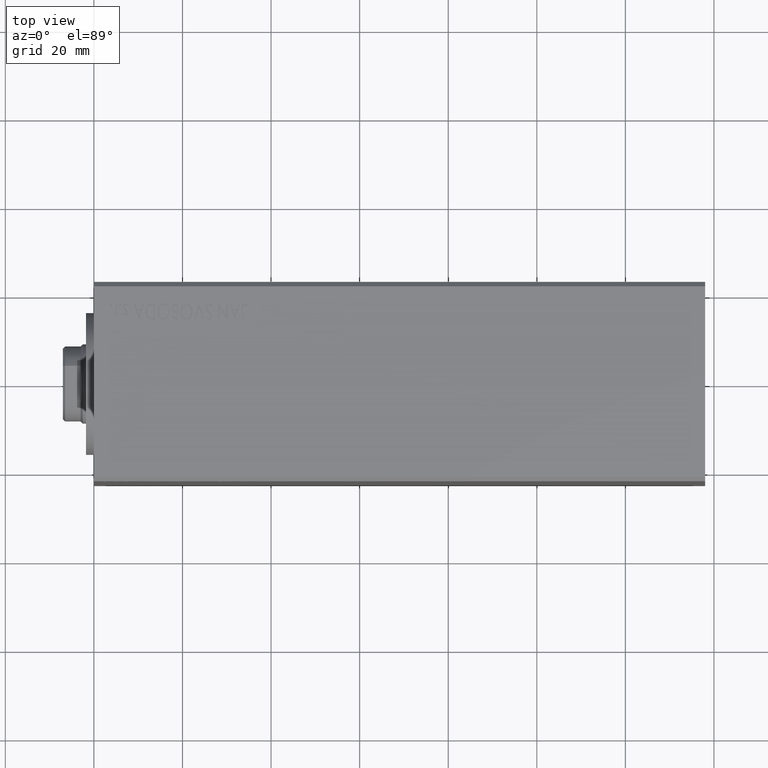
[diagram: clean part render]
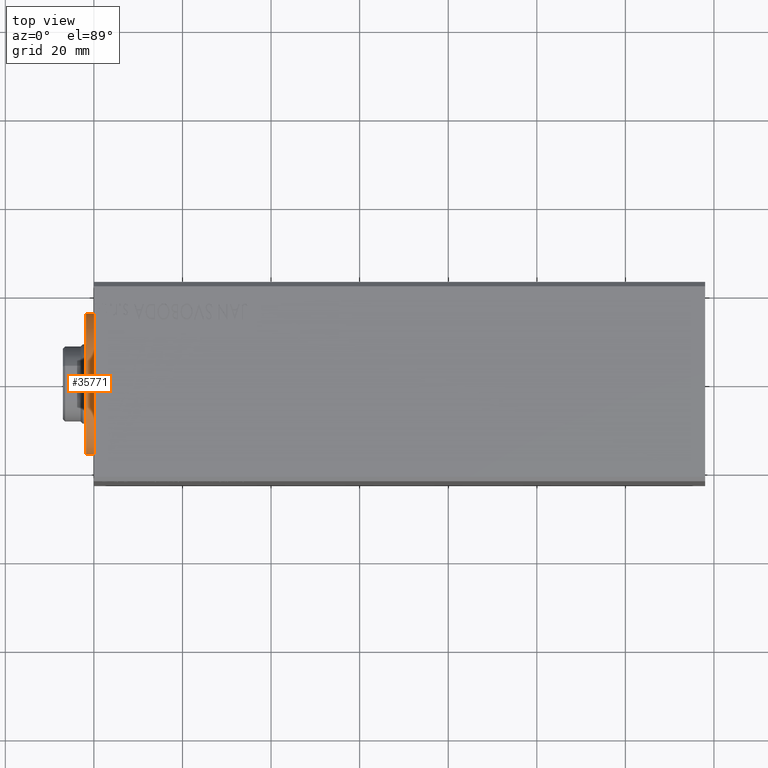
[diagram: same view with one face highlighted and labeled with its STEP entity id]
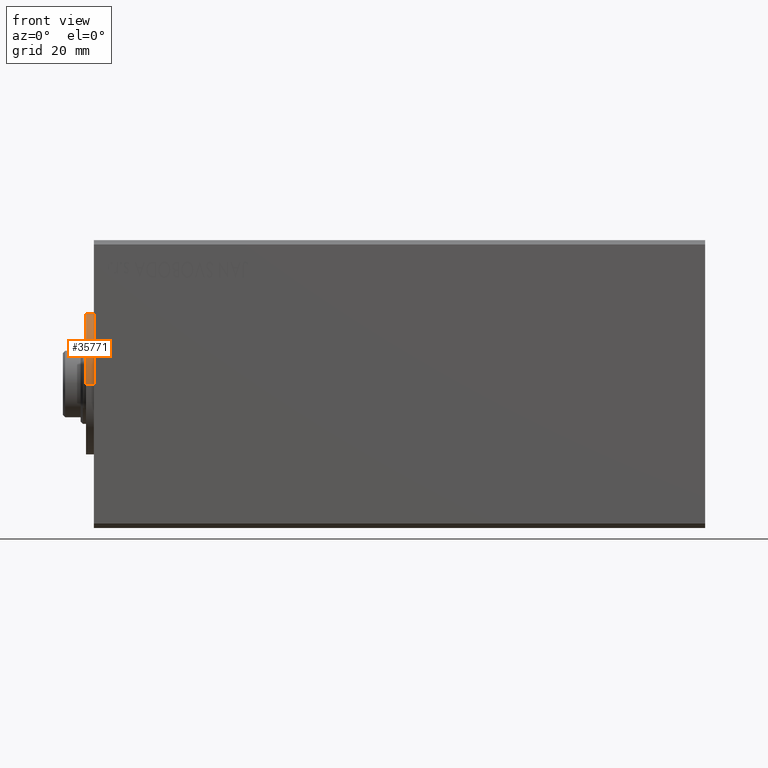
[diagram: same view with one face highlighted and labeled with its STEP entity id]
A machine part, top view. The second image highlights one B-rep face of the part: STEP entity #35771.
A second angle (front view) of the same face is appended — the face is thin or edge-on in the first view.
In plain terms, the highlighted cylindrical surface (partial cylindrical patch) has radius 16 mm, axis along (1, -0, 0).
Its self-contained STEP definition (entity closure, byte-faithful):
#288 = CARTESIAN_POINT ( 'NONE',  ( -16.00000000000000000, 0.000000000000000000, 6.999999999999999112 ) ) ;
#439 = EDGE_CURVE ( 'NONE', #32513, #9167, #26528, .T. ) ;
#4859 = CARTESIAN_POINT ( 'NONE',  ( 0.000000000000000000, 0.000000000000000000, 5.200000000000000178 ) ) ;
#5517 = DIRECTION ( 'NONE',  ( -1.000000000000000000, 0.000000000000000000, 0.000000000000000000 ) ) ;
#6761 = LINE ( 'NONE', #288, #21426 ) ;
#7594 = AXIS2_PLACEMENT_3D ( 'NONE', #27181, #34084, #40768 ) ;
#9167 = VERTEX_POINT ( 'NONE', #20217 ) ;
#10325 = DIRECTION ( 'NONE',  ( -0.000000000000000000, -0.000000000000000000, -1.000000000000000000 ) ) ;
#15343 = DIRECTION ( 'NONE',  ( 0.000000000000000000, 0.000000000000000000, 1.000000000000000000 ) ) ;
#17571 = CIRCLE ( 'NONE', #7594, 16.00000000000000000 ) ;
#19841 = EDGE_CURVE ( 'NONE', #40387, #9167, #34207, .T. ) ;
#20217 = CARTESIAN_POINT ( 'NONE',  ( 16.00000000000000000, 1.959434878635765131E-15, 5.200000000000000178 ) ) ;
#20864 = VERTEX_POINT ( 'NONE', #26276 ) ;
#21335 = ORIENTED_EDGE ( 'NONE', *, *, #19841, .T. ) ;
#21426 = VECTOR ( 'NONE', #10325, 1000.000000000000000 ) ;
#22919 = CYLINDRICAL_SURFACE ( 'NONE', #43328, 16.00000000000000000 ) ;
#24935 = AXIS2_PLACEMENT_3D ( 'NONE', #4859, #15343, #33331 ) ;
#25139 = EDGE_LOOP ( 'NONE', ( #32844, #34384, #27349, #21335 ) ) ;
#26276 = CARTESIAN_POINT ( 'NONE',  ( -16.00000000000000000, 0.000000000000000000, 6.999999999999999112 ) ) ;
#26528 = LINE ( 'NONE', #36350, #28364 ) ;
#27181 = CARTESIAN_POINT ( 'NONE',  ( 0.000000000000000000, 0.000000000000000000, 6.999999999999999112 ) ) ;
#27349 = ORIENTED_EDGE ( 'NONE', *, *, #43404, .T. ) ;
#28364 = VECTOR ( 'NONE', #37224, 1000.000000000000000 ) ;
#29828 = FACE_OUTER_BOUND ( 'NONE', #25139, .T. ) ;
#32035 = EDGE_CURVE ( 'NONE', #20864, #32513, #17571, .T. ) ;
#32164 = CARTESIAN_POINT ( 'NONE',  ( 16.00000000000000000, 1.959434878635765131E-15, 6.999999999999999112 ) ) ;
#32513 = VERTEX_POINT ( 'NONE', #32164 ) ;
#32844 = ORIENTED_EDGE ( 'NONE', *, *, #439, .F. ) ;
#33331 = DIRECTION ( 'NONE',  ( 1.000000000000000000, 0.000000000000000000, 0.000000000000000000 ) ) ;
#33884 = CARTESIAN_POINT ( 'NONE',  ( -16.00000000000000000, 0.000000000000000000, 5.200000000000000178 ) ) ;
#34084 = DIRECTION ( 'NONE',  ( 0.000000000000000000, 0.000000000000000000, 1.000000000000000000 ) ) ;
#34207 = CIRCLE ( 'NONE', #24935, 16.00000000000000000 ) ;
#34384 = ORIENTED_EDGE ( 'NONE', *, *, #32035, .F. ) ;
#35771 = ADVANCED_FACE ( 'NONE', ( #29828 ), #22919, .T. ) ;
#36350 = CARTESIAN_POINT ( 'NONE',  ( 16.00000000000000000, 1.959434878635765131E-15, 6.999999999999999112 ) ) ;
#37224 = DIRECTION ( 'NONE',  ( -0.000000000000000000, -0.000000000000000000, -1.000000000000000000 ) ) ;
#40387 = VERTEX_POINT ( 'NONE', #33884 ) ;
#40768 = DIRECTION ( 'NONE',  ( 1.000000000000000000, 0.000000000000000000, 0.000000000000000000 ) ) ;
#43001 = DIRECTION ( 'NONE',  ( -0.000000000000000000, -0.000000000000000000, -1.000000000000000000 ) ) ;
#43328 = AXIS2_PLACEMENT_3D ( 'NONE', #43441, #43001, #5517 ) ;
#43404 = EDGE_CURVE ( 'NONE', #20864, #40387, #6761, .T. ) ;
#43441 = CARTESIAN_POINT ( 'NONE',  ( 0.000000000000000000, 0.000000000000000000, 6.999999999999999112 ) ) ;